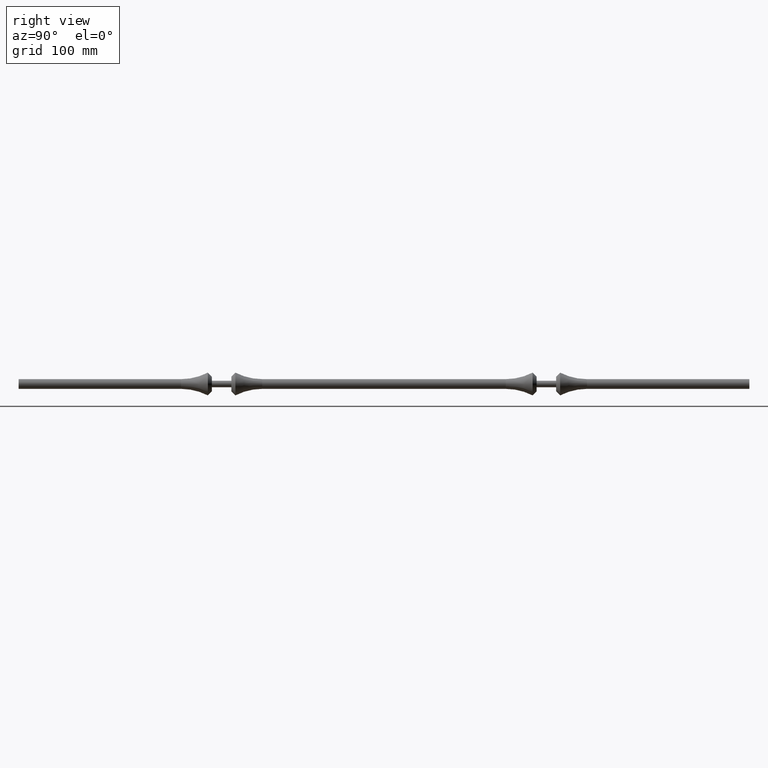
[diagram: clean part render]
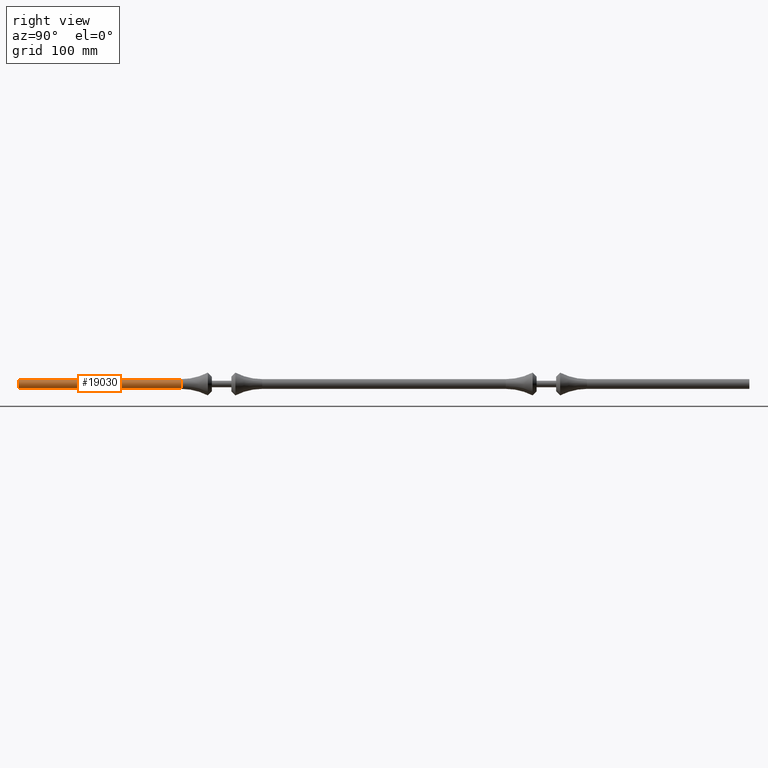
[diagram: same view with one face highlighted and labeled with its STEP entity id]
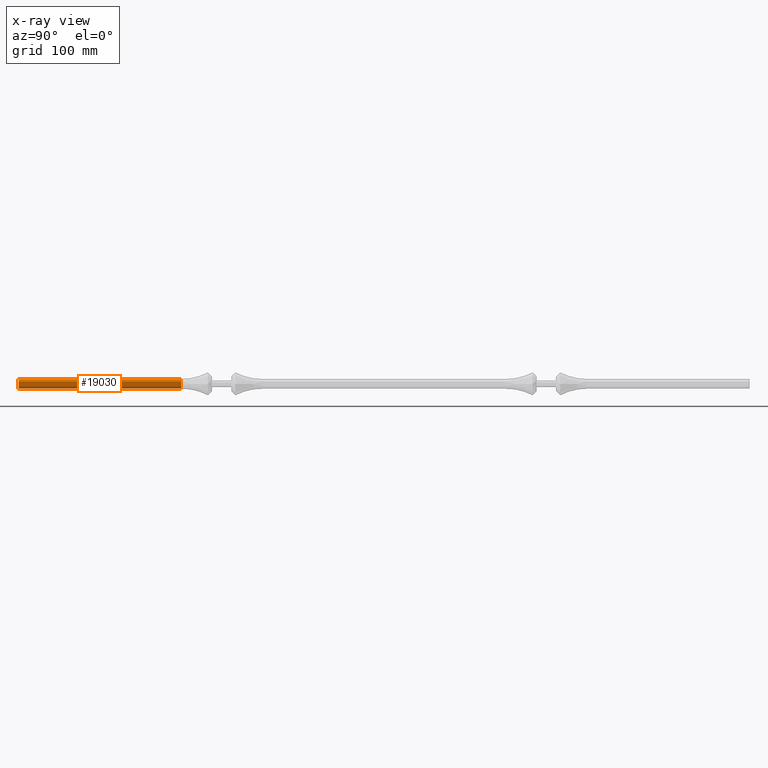
[diagram: x-ray of the same camera — body ghosted, the highlighted face saturated]
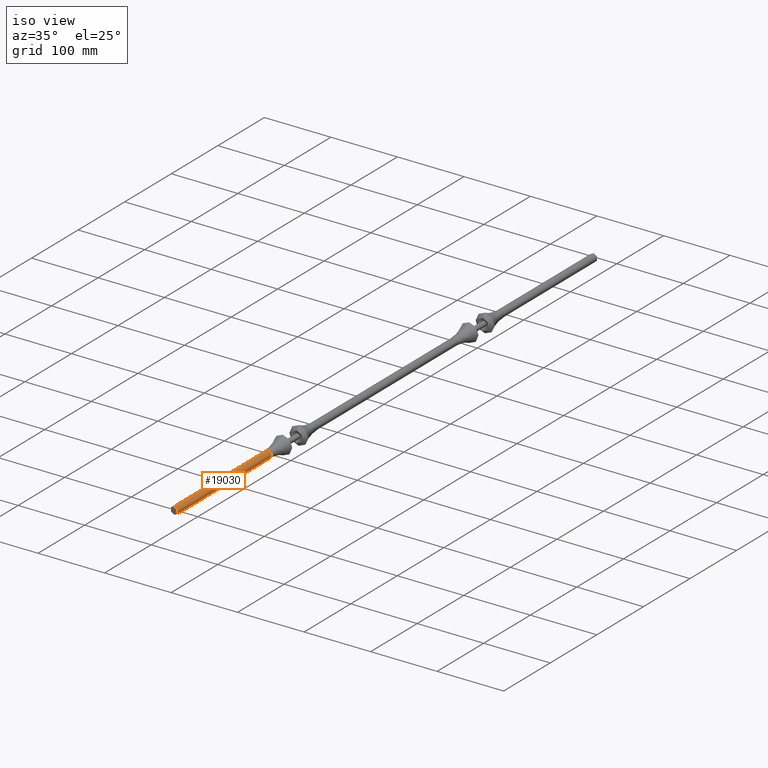
[diagram: same view with one face highlighted and labeled with its STEP entity id]
A machine part, right view. The second image highlights one B-rep face of the part: STEP entity #19030.
The next image is the same camera in x-ray: the body ghosted, the highlighted face saturated — about 0% of this face is hidden behind the body in this view.
A second angle (iso view) of the same face is appended — the face is thin or edge-on in the first view.
In plain terms, the highlighted cylindrical surface (edge-blend (fillet) strip) has radius 6 mm, axis along (0, 1, 0).
Its self-contained STEP definition (entity closure, byte-faithful):
#11 = CARTESIAN_POINT ( 'NONE',  ( 7.347880794884119736E-16, 0.000000000000000000, 6.000000000000000000 ) ) ;
#281 = ORIENTED_EDGE ( 'NONE', *, *, #17994, .F. ) ;
#2636 = AXIS2_PLACEMENT_3D ( 'NONE', #12727, #9785, #11115 ) ;
#2661 = LINE ( 'NONE', #5236, #14385 ) ;
#3096 = DIRECTION ( 'NONE',  ( -0.000000000000000000, -1.000000000000000000, -0.000000000000000000 ) ) ;
#4331 = DIRECTION ( 'NONE',  ( 0.000000000000000000, 0.000000000000000000, -1.000000000000000000 ) ) ;
#4463 = CARTESIAN_POINT ( 'NONE',  ( 0.000000000000000000, 200.0000000000000000, -6.000000000000000000 ) ) ;
#4546 = CARTESIAN_POINT ( 'NONE',  ( 0.000000000000000000, 0.000000000000000000, 0.000000000000000000 ) ) ;
#4668 = CARTESIAN_POINT ( 'NONE',  ( 7.347880794884119736E-16, 0.000000000000000000, 6.000000000000000000 ) ) ;
#5236 = CARTESIAN_POINT ( 'NONE',  ( 0.000000000000000000, 0.000000000000000000, -6.000000000000000000 ) ) ;
#5325 = ORIENTED_EDGE ( 'NONE', *, *, #10758, .F. ) ;
#7162 = CYLINDRICAL_SURFACE ( 'NONE', #7348, 6.000000000000000000 ) ;
#7348 = AXIS2_PLACEMENT_3D ( 'NONE', #4546, #10755, #16675 ) ;
#7426 = LINE ( 'NONE', #4668, #14300 ) ;
#8179 = VERTEX_POINT ( 'NONE', #18466 ) ;
#8213 = DIRECTION ( 'NONE',  ( -0.000000000000000000, -1.000000000000000000, -0.000000000000000000 ) ) ;
#9353 = EDGE_CURVE ( 'NONE', #12605, #10320, #7426, .T. ) ;
#9465 = CIRCLE ( 'NONE', #12962, 6.000000000000000000 ) ;
#9785 = DIRECTION ( 'NONE',  ( -0.000000000000000000, -1.000000000000000000, -0.000000000000000000 ) ) ;
#10128 = ORIENTED_EDGE ( 'NONE', *, *, #18731, .T. ) ;
#10320 = VERTEX_POINT ( 'NONE', #11 ) ;
#10545 = CARTESIAN_POINT ( 'NONE',  ( 0.000000000000000000, 0.000000000000000000, 0.000000000000000000 ) ) ;
#10755 = DIRECTION ( 'NONE',  ( -0.000000000000000000, -1.000000000000000000, -0.000000000000000000 ) ) ;
#10758 = EDGE_CURVE ( 'NONE', #8179, #10320, #9465, .T. ) ;
#11115 = DIRECTION ( 'NONE',  ( 0.000000000000000000, 0.000000000000000000, -1.000000000000000000 ) ) ;
#11345 = ORIENTED_EDGE ( 'NONE', *, *, #9353, .T. ) ;
#11705 = FACE_OUTER_BOUND ( 'NONE', #18255, .T. ) ;
#12386 = CARTESIAN_POINT ( 'NONE',  ( 7.347880794884119736E-16, 200.0000000000000000, 6.000000000000000000 ) ) ;
#12605 = VERTEX_POINT ( 'NONE', #12386 ) ;
#12727 = CARTESIAN_POINT ( 'NONE',  ( 0.000000000000000000, 200.0000000000000000, 0.000000000000000000 ) ) ;
#12962 = AXIS2_PLACEMENT_3D ( 'NONE', #10545, #3096, #4331 ) ;
#14300 = VECTOR ( 'NONE', #8213, 1000.000000000000000 ) ;
#14385 = VECTOR ( 'NONE', #14619, 1000.000000000000000 ) ;
#14619 = DIRECTION ( 'NONE',  ( -0.000000000000000000, -1.000000000000000000, -0.000000000000000000 ) ) ;
#15629 = VERTEX_POINT ( 'NONE', #4463 ) ;
#16506 = CIRCLE ( 'NONE', #2636, 6.000000000000000000 ) ;
#16675 = DIRECTION ( 'NONE',  ( 0.000000000000000000, 0.000000000000000000, -1.000000000000000000 ) ) ;
#17994 = EDGE_CURVE ( 'NONE', #15629, #8179, #2661, .T. ) ;
#18255 = EDGE_LOOP ( 'NONE', ( #10128, #11345, #5325, #281 ) ) ;
#18466 = CARTESIAN_POINT ( 'NONE',  ( 0.000000000000000000, 0.000000000000000000, -6.000000000000000000 ) ) ;
#18731 = EDGE_CURVE ( 'NONE', #15629, #12605, #16506, .T. ) ;
#19030 = ADVANCED_FACE ( 'NONE', ( #11705 ), #7162, .T. ) ;